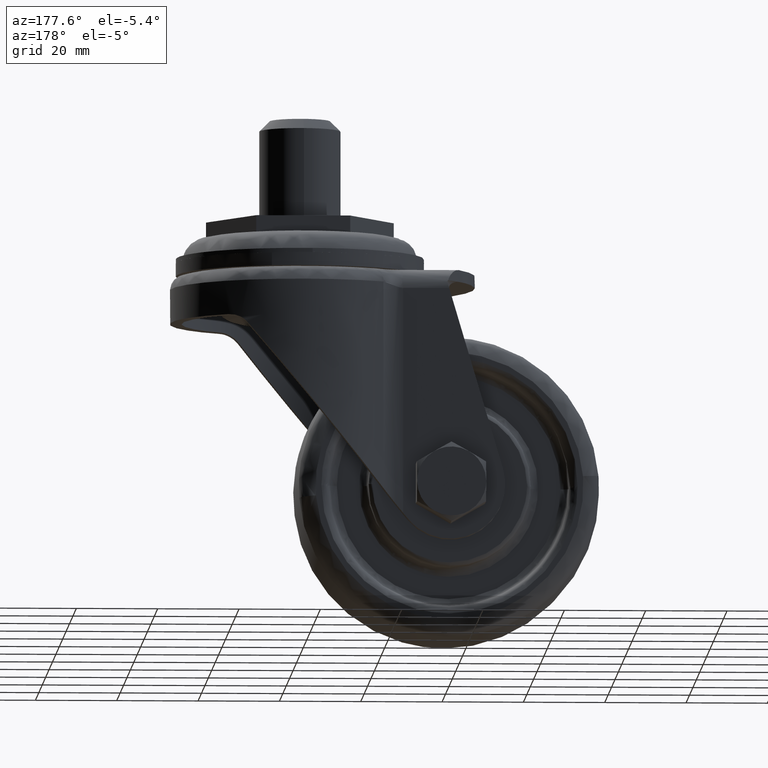
[diagram: clean part render]
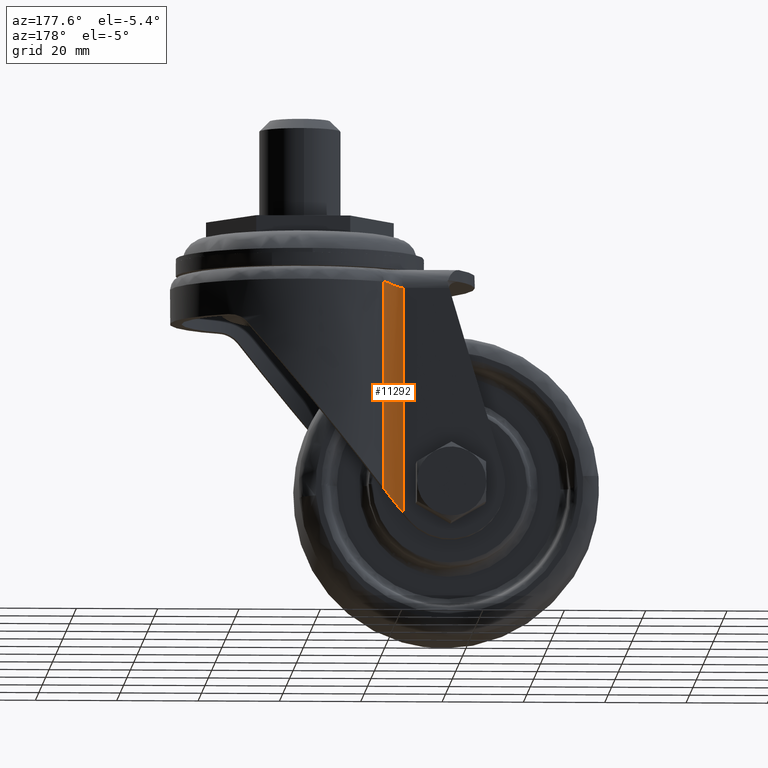
[diagram: same view with one face highlighted and labeled with its STEP entity id]
A machine part, auxiliary view. The second image highlights one B-rep face of the part: STEP entity #11292.
In plain terms, the highlighted face is a freeform B-spline surface patch.
Its self-contained STEP definition (entity closure, byte-faithful):
#10840=CARTESIAN_POINT('',(-19.515901209014149,25.359999999999999,-12.750000000000000));
#10841=VERTEX_POINT('',#10840);
#10951=CARTESIAN_POINT('',(-24.394876511267650,23.699999999999999,-14.150000000000000));
#10952=VERTEX_POINT('',#10951);
#10969=CARTESIAN_POINT('',(-24.394876511267650,23.699999999999999,-14.150000000000000));
#10970=CARTESIAN_POINT('',(-24.315121258330400,23.700692716614022,-14.148217746634170));
#10971=CARTESIAN_POINT('',(-24.151323808461921,23.702115384221230,-14.144557441568470));
#10972=CARTESIAN_POINT('',(-23.900372365798319,23.714019046755102,-14.116692691526650));
#10973=CARTESIAN_POINT('',(-23.638393314912172,23.734311003574799,-14.072798782921250));
#10974=CARTESIAN_POINT('',(-23.365774968784748,23.764825267722209,-14.010944514333801));
#10975=CARTESIAN_POINT('',(-22.998680398830579,23.818936965541841,-13.908524971457229));
#10976=CARTESIAN_POINT('',(-22.475777129314778,23.924313877051429,-13.721323102129270));
#10977=CARTESIAN_POINT('',(-21.814217649821241,24.114902130024550,-13.450005864734161));
#10978=CARTESIAN_POINT('',(-21.173662770768040,24.367377085069201,-13.178758405942160));
#10979=CARTESIAN_POINT('',(-20.641601431792900,24.628860602698079,-12.970526810914331));
#10980=CARTESIAN_POINT('',(-20.219928478142279,24.871103974912991,-12.844453759132520));
#10981=CARTESIAN_POINT('',(-19.851260343456161,25.109750422728741,-12.765813966842540));
#10982=CARTESIAN_POINT('',(-19.624340212532690,25.279081331017299,-12.755113475763579));
#10983=CARTESIAN_POINT('',(-19.515901209014071,25.360000000000031,-12.749999999999931));
#10984=B_SPLINE_CURVE_WITH_KNOTS('',3,(#10969,#10970,#10971,#10972,#10973,#10974,#10975,#10976,#10977,#10978,#10979,#10980,#10981,#10982,#10983),.UNSPECIFIED.,.F.,.U.,(4,1,1,1,1,1,1,1,1,1,1,1,4),(0.0,0.043792420377553,0.089938737791419,0.138629484789537,0.190026900629384,0.244268938776015,0.349911859164898,0.500039942369502,0.650133581338929,0.755810917115843,0.844587706730500,0.925732661319626,1.0),.UNSPECIFIED.);
#10985=EDGE_CURVE('',#10952,#10841,#10984,.T.);
#11248=CARTESIAN_POINT('',(-19.315770442825265,25.519168215724381,-71.073241698939640));
#11249=CARTESIAN_POINT('',(-19.315770442825265,25.519168215724381,-11.291918957526509));
#11250=CARTESIAN_POINT('',(-21.642532407044172,23.607148729552563,-71.073241698939654));
#11251=CARTESIAN_POINT('',(-21.642532407044172,23.607148729552563,-11.291918957526498));
#11252=CARTESIAN_POINT('',(-24.652554055791914,23.704150934200428,-71.073241698939654));
#11253=CARTESIAN_POINT('',(-24.652554055791914,23.704150934200428,-11.291918957526502));
#11261=(BOUNDED_SURFACE()B_SPLINE_SURFACE(1,2,((#11248,#11250,#11252),(#11249,#11251,#11253)),.UNSPECIFIED.,.F.,.F.,.U.)B_SPLINE_SURFACE_WITH_KNOTS((2,2),(3,3),(0.0,59.781322741413163),(0.0,5.823654092692562),.UNSPECIFIED.)GEOMETRIC_REPRESENTATION_ITEM()RATIONAL_B_SPLINE_SURFACE(((0.999701087225364,0.931798087211601,0.991586161104818),(0.999701087225364,0.931798087211601,0.991586161104818)))REPRESENTATION_ITEM('')SURFACE());
#11262=CARTESIAN_POINT('',(-24.394876511267650,23.699999999999999,-69.650723608721606));
#11263=VERTEX_POINT('',#11262);
#11264=CARTESIAN_POINT('',(-24.394876511267650,23.699999999999999,-14.150000000000000));
#11265=CARTESIAN_POINT('',(-24.394876511267650,23.699999999999999,-69.650723608721606));
#11266=QUASI_UNIFORM_CURVE('',1,(#11264,#11265),.UNSPECIFIED.,.F.,.U.);
#11267=EDGE_CURVE('',#10952,#11263,#11266,.T.);
#11268=ORIENTED_EDGE('',*,*,#11267,.F.);
#11269=ORIENTED_EDGE('',*,*,#10985,.T.);
#11270=CARTESIAN_POINT('',(-19.515901209014149,25.359999999999999,-63.752632381223407));
#11271=VERTEX_POINT('',#11270);
#11272=CARTESIAN_POINT('',(-19.515901209014149,25.359999999999999,-63.752632381223407));
#11273=CARTESIAN_POINT('',(-19.515901209014149,25.359999999999999,-12.750000000000000));
#11274=QUASI_UNIFORM_CURVE('',1,(#11272,#11273),.UNSPECIFIED.,.F.,.U.);
#11275=EDGE_CURVE('',#11271,#10841,#11274,.T.);
#11276=ORIENTED_EDGE('',*,*,#11275,.F.);
#11277=CARTESIAN_POINT('',(-24.394876511267650,23.699999999999999,-69.650723608721606));
#11278=CARTESIAN_POINT('',(-21.672993497458123,23.699999999999996,-66.360296145682199));
#11279=CARTESIAN_POINT('',(-19.515901209014078,25.360000000000031,-63.752632381223471));
#11287=(BOUNDED_CURVE()B_SPLINE_CURVE(2,(#11277,#11278,#11279),.UNSPECIFIED.,.F.,.U.)CURVE()GEOMETRIC_REPRESENTATION_ITEM()QUASI_UNIFORM_CURVE()RATIONAL_B_SPLINE_CURVE((1.0,0.946704811438076,1.0))REPRESENTATION_ITEM(''));
#11288=EDGE_CURVE('',#11263,#11271,#11287,.T.);
#11289=ORIENTED_EDGE('',*,*,#11288,.F.);
#11290=EDGE_LOOP('',(#11268,#11269,#11276,#11289));
#11291=FACE_OUTER_BOUND('',#11290,.T.);
#11292=ADVANCED_FACE('',(#11291),#11261,.F.);